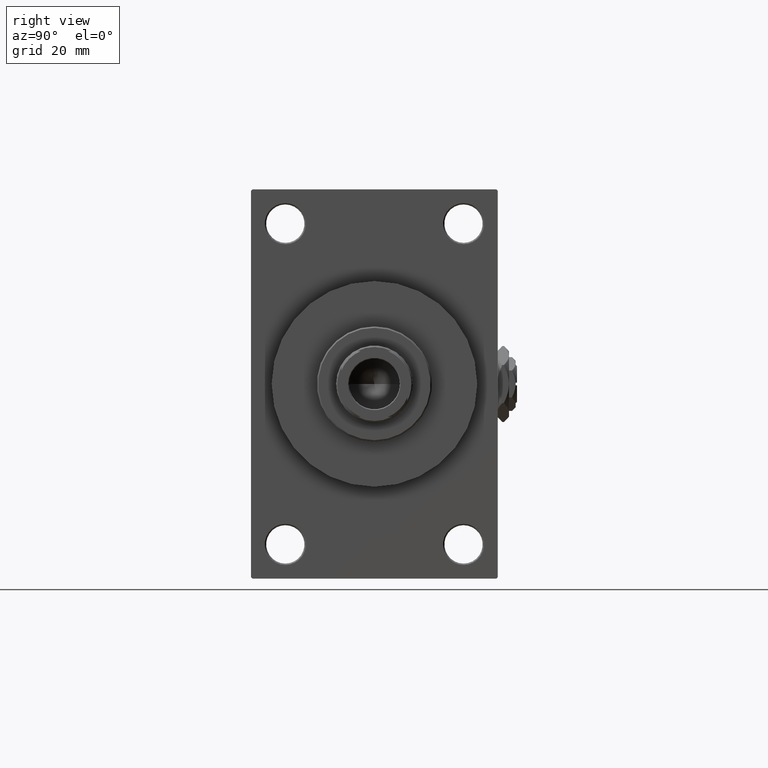
[diagram: clean part render]
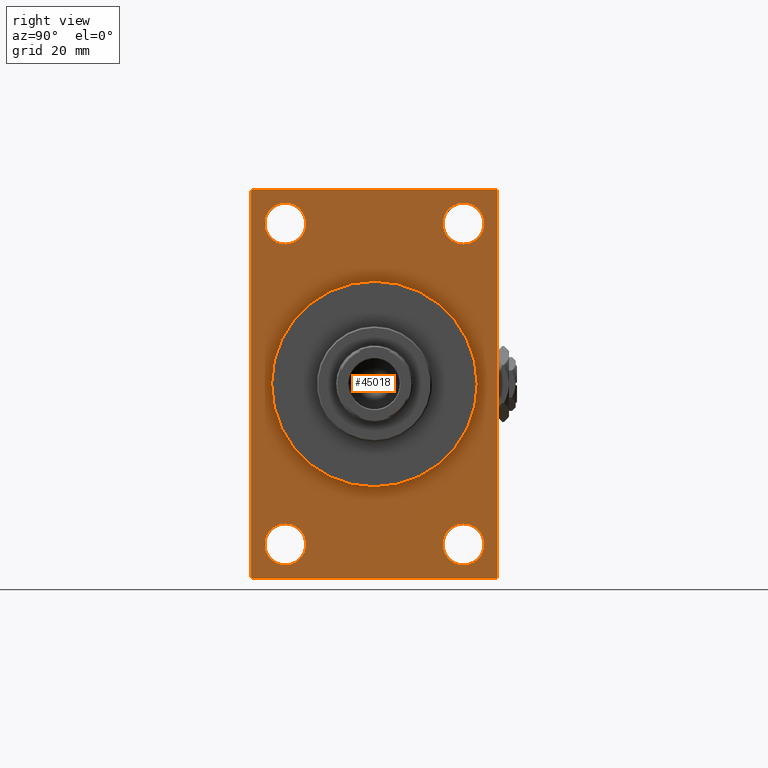
[diagram: same view with one face highlighted and labeled with its STEP entity id]
A machine part, right view. The second image highlights one B-rep face of the part: STEP entity #45018.
In plain terms, the highlighted planar face has unit normal (-1, 0, 0).
Its self-contained STEP definition (entity closure, byte-faithful):
#84 = CARTESIAN_POINT ( 'NONE',  ( 141.0000000000000000, 4.592425496802575156E-15, -37.50000000000000711 ) ) ;
#442 = EDGE_CURVE ( 'NONE', #764, #37250, #39195, .T. ) ;
#602 = FACE_BOUND ( 'NONE', #25463, .T. ) ;
#764 = VERTEX_POINT ( 'NONE', #36039 ) ;
#1236 = CARTESIAN_POINT ( 'NONE',  ( 141.0000000000000000, 32.50000000000000711, 58.50000000000000711 ) ) ;
#1278 = ORIENTED_EDGE ( 'NONE', *, *, #34218, .T. ) ;
#1463 = EDGE_CURVE ( 'NONE', #47131, #20885, #14547, .T. ) ;
#1757 = VERTEX_POINT ( 'NONE', #43391 ) ;
#2028 = AXIS2_PLACEMENT_3D ( 'NONE', #20705, #2499, #6235 ) ;
#2499 = DIRECTION ( 'NONE',  ( -1.000000000000000000, 0.000000000000000000, -0.000000000000000000 ) ) ;
#2732 = DIRECTION ( 'NONE',  ( 0.000000000000000000, 0.000000000000000000, -1.000000000000000000 ) ) ;
#2993 = EDGE_CURVE ( 'NONE', #4226, #46901, #17692, .T. ) ;
#3207 = LINE ( 'NONE', #48824, #19510 ) ;
#3281 = ORIENTED_EDGE ( 'NONE', *, *, #9224, .F. ) ;
#3437 = DIRECTION ( 'NONE',  ( 1.000000000000000000, 0.000000000000000000, 0.000000000000000000 ) ) ;
#3742 = CARTESIAN_POINT ( 'NONE',  ( 141.0000000000000000, -32.50000000000000000, -50.99999999999992895 ) ) ;
#4195 = ORIENTED_EDGE ( 'NONE', *, *, #34496, .T. ) ;
#4226 = VERTEX_POINT ( 'NONE', #24849 ) ;
#4471 = ORIENTED_EDGE ( 'NONE', *, *, #15772, .T. ) ;
#4823 = FACE_BOUND ( 'NONE', #18415, .T. ) ;
#5150 = VERTEX_POINT ( 'NONE', #47531 ) ;
#5185 = EDGE_CURVE ( 'NONE', #48714, #26913, #47777, .T. ) ;
#5545 = CARTESIAN_POINT ( 'NONE',  ( 141.0000000000000000, -32.50000000000000000, 66.00000000000005684 ) ) ;
#5768 = ORIENTED_EDGE ( 'NONE', *, *, #38411, .T. ) ;
#5961 = VERTEX_POINT ( 'NONE', #21042 ) ;
#6235 = DIRECTION ( 'NONE',  ( 0.000000000000000000, 0.000000000000000000, 1.000000000000000000 ) ) ;
#6850 = AXIS2_PLACEMENT_3D ( 'NONE', #17109, #13104, #35289 ) ;
#7301 = VERTEX_POINT ( 'NONE', #39703 ) ;
#7496 = VECTOR ( 'NONE', #37053, 1000.000000000000000 ) ;
#8232 = DIRECTION ( 'NONE',  ( -1.000000000000000000, 0.000000000000000000, -0.000000000000000000 ) ) ;
#8282 = CIRCLE ( 'NONE', #25799, 37.50000000000000711 ) ;
#8627 = CARTESIAN_POINT ( 'NONE',  ( 141.0000000000000000, -44.49999999999994316, -71.00000000000000000 ) ) ;
#8812 = FACE_OUTER_BOUND ( 'NONE', #46336, .T. ) ;
#8931 = VERTEX_POINT ( 'NONE', #13167 ) ;
#9224 = EDGE_CURVE ( 'NONE', #1757, #42358, #24367, .T. ) ;
#9914 = DIRECTION ( 'NONE',  ( -1.000000000000000000, 0.000000000000000000, -0.000000000000000000 ) ) ;
#10295 = DIRECTION ( 'NONE',  ( 0.000000000000000000, 0.000000000000000000, 1.000000000000000000 ) ) ;
#10988 = ORIENTED_EDGE ( 'NONE', *, *, #5185, .T. ) ;
#11755 = ORIENTED_EDGE ( 'NONE', *, *, #43326, .T. ) ;
#12084 = LINE ( 'NONE', #45735, #48348 ) ;
#12441 = CARTESIAN_POINT ( 'NONE',  ( 141.0000000000000000, 32.50000000000000711, -58.50000000000000000 ) ) ;
#12615 = LINE ( 'NONE', #8627, #44548 ) ;
#13050 = FACE_BOUND ( 'NONE', #48835, .T. ) ;
#13104 = DIRECTION ( 'NONE',  ( -1.000000000000000000, 0.000000000000000000, -0.000000000000000000 ) ) ;
#13167 = CARTESIAN_POINT ( 'NONE',  ( 141.0000000000000000, 44.50000000000001421, -70.99999999999998579 ) ) ;
#13468 = CARTESIAN_POINT ( 'NONE',  ( 141.0000000000000000, -44.99999999999997158, 70.99999999999998579 ) ) ;
#14222 = EDGE_CURVE ( 'NONE', #46901, #4226, #21995, .T. ) ;
#14547 = CIRCLE ( 'NONE', #42292, 7.500000000000055067 ) ;
#14685 = DIRECTION ( 'NONE',  ( -0.000000000000000000, 0.7071067811865376918, 0.7071067811865574537 ) ) ;
#15344 = CARTESIAN_POINT ( 'NONE',  ( 141.0000000000000000, -44.49999999999992184, 70.99999999999998579 ) ) ;
#15772 = EDGE_CURVE ( 'NONE', #45167, #7301, #12084, .T. ) ;
#16311 = FACE_BOUND ( 'NONE', #23986, .T. ) ;
#16583 = LINE ( 'NONE', #24292, #39566 ) ;
#16839 = DIRECTION ( 'NONE',  ( 0.000000000000000000, -4.886545002751570165E-17, -1.000000000000000000 ) ) ;
#17109 = CARTESIAN_POINT ( 'NONE',  ( 141.0000000000000000, 32.50000000000000711, -58.50000000000000000 ) ) ;
#17154 = DIRECTION ( 'NONE',  ( -1.000000000000000000, 0.000000000000000000, -0.000000000000000000 ) ) ;
#17220 = VERTEX_POINT ( 'NONE', #22649 ) ;
#17481 = ORIENTED_EDGE ( 'NONE', *, *, #442, .T. ) ;
#17516 = VERTEX_POINT ( 'NONE', #30063 ) ;
#17692 = CIRCLE ( 'NONE', #28006, 7.500000000000062172 ) ;
#17938 = CARTESIAN_POINT ( 'NONE',  ( 141.0000000000000000, 0.000000000000000000, 0.000000000000000000 ) ) ;
#18182 = DIRECTION ( 'NONE',  ( 0.000000000000000000, 0.000000000000000000, -1.000000000000000000 ) ) ;
#18415 = EDGE_LOOP ( 'NONE', ( #43085, #28948 ) ) ;
#19510 = VECTOR ( 'NONE', #14685, 999.9999999999998863 ) ;
#20100 = DIRECTION ( 'NONE',  ( 1.000000000000000000, 0.000000000000000000, 0.000000000000000000 ) ) ;
#20532 = FACE_BOUND ( 'NONE', #32436, .T. ) ;
#20601 = AXIS2_PLACEMENT_3D ( 'NONE', #46950, #34743, #35732 ) ;
#20705 = CARTESIAN_POINT ( 'NONE',  ( 141.0000000000000000, 32.50000000000000711, 58.50000000000000711 ) ) ;
#20885 = VERTEX_POINT ( 'NONE', #23088 ) ;
#20906 = DIRECTION ( 'NONE',  ( 0.000000000000000000, 0.000000000000000000, 1.000000000000000000 ) ) ;
#21028 = CARTESIAN_POINT ( 'NONE',  ( 141.0000000000000000, 45.00000000000002132, 71.00000000000000000 ) ) ;
#21042 = CARTESIAN_POINT ( 'NONE',  ( 141.0000000000000000, -44.49999999999991473, -71.00000000000000000 ) ) ;
#21115 = CARTESIAN_POINT ( 'NONE',  ( 141.0000000000000000, -44.99999999999997158, 70.49999999999998579 ) ) ;
#21147 = CIRCLE ( 'NONE', #2028, 7.500000000000047962 ) ;
#21156 = ORIENTED_EDGE ( 'NONE', *, *, #43760, .T. ) ;
#21162 = ORIENTED_EDGE ( 'NONE', *, *, #41153, .F. ) ;
#21221 = VECTOR ( 'NONE', #32736, 1000.000000000000000 ) ;
#21995 = CIRCLE ( 'NONE', #6850, 7.500000000000062172 ) ;
#22516 = ORIENTED_EDGE ( 'NONE', *, *, #33506, .F. ) ;
#22527 = VERTEX_POINT ( 'NONE', #27927 ) ;
#22649 = CARTESIAN_POINT ( 'NONE',  ( 141.0000000000000000, 32.50000000000000711, 66.00000000000005684 ) ) ;
#23088 = CARTESIAN_POINT ( 'NONE',  ( 141.0000000000000000, -32.50000000000000000, -66.00000000000004263 ) ) ;
#23423 = ORIENTED_EDGE ( 'NONE', *, *, #47504, .T. ) ;
#23986 = EDGE_LOOP ( 'NONE', ( #3281, #22516 ) ) ;
#24125 = DIRECTION ( 'NONE',  ( 0.000000000000000000, 0.000000000000000000, 1.000000000000000000 ) ) ;
#24292 = CARTESIAN_POINT ( 'NONE',  ( 141.0000000000000000, 45.00000000000002132, 71.00000000000000000 ) ) ;
#24367 = CIRCLE ( 'NONE', #29138, 37.50000000000000711 ) ;
#24849 = CARTESIAN_POINT ( 'NONE',  ( 141.0000000000000000, 32.50000000000000711, -50.99999999999993605 ) ) ;
#25463 = EDGE_LOOP ( 'NONE', ( #11755, #48867 ) ) ;
#25799 = AXIS2_PLACEMENT_3D ( 'NONE', #17938, #3437, #18182 ) ;
#26411 = LINE ( 'NONE', #45355, #44341 ) ;
#26552 = CARTESIAN_POINT ( 'NONE',  ( 141.0000000000000000, 32.50000000000000711, -66.00000000000005684 ) ) ;
#26913 = VERTEX_POINT ( 'NONE', #46947 ) ;
#26929 = DIRECTION ( 'NONE',  ( 0.000000000000000000, 0.000000000000000000, 1.000000000000000000 ) ) ;
#27283 = DIRECTION ( 'NONE',  ( 0.000000000000000000, -0.7071067811865474617, 0.7071067811865474617 ) ) ;
#27480 = DIRECTION ( 'NONE',  ( -1.000000000000000000, 0.000000000000000000, -0.000000000000000000 ) ) ;
#27637 = DIRECTION ( 'NONE',  ( -1.000000000000000000, 0.000000000000000000, -0.000000000000000000 ) ) ;
#27849 = CARTESIAN_POINT ( 'NONE',  ( 141.0000000000000000, -32.50000000000000000, 58.50000000000000711 ) ) ;
#27927 = CARTESIAN_POINT ( 'NONE',  ( 141.0000000000000000, -44.99999999999997158, -70.50000000000000000 ) ) ;
#28006 = AXIS2_PLACEMENT_3D ( 'NONE', #12441, #27637, #32373 ) ;
#28948 = ORIENTED_EDGE ( 'NONE', *, *, #2993, .T. ) ;
#29138 = AXIS2_PLACEMENT_3D ( 'NONE', #35541, #20100, #31803 ) ;
#30063 = CARTESIAN_POINT ( 'NONE',  ( 141.0000000000000000, 45.00000000000001421, -70.49999999999997158 ) ) ;
#31803 = DIRECTION ( 'NONE',  ( 0.000000000000000000, 0.000000000000000000, -1.000000000000000000 ) ) ;
#32057 = DIRECTION ( 'NONE',  ( 0.000000000000000000, 0.7071067811865771047, -0.7071067811865180408 ) ) ;
#32110 = CARTESIAN_POINT ( 'NONE',  ( 141.0000000000000000, -32.50000000000000000, 58.50000000000000711 ) ) ;
#32373 = DIRECTION ( 'NONE',  ( 0.000000000000000000, 0.000000000000000000, 1.000000000000000000 ) ) ;
#32436 = EDGE_LOOP ( 'NONE', ( #5768, #1278 ) ) ;
#32736 = DIRECTION ( 'NONE',  ( 0.000000000000000000, -1.000000000000000000, -1.541976423090495387E-16 ) ) ;
#33446 = DIRECTION ( 'NONE',  ( 0.000000000000000000, -1.000000000000000000, -1.541976423090495633E-16 ) ) ;
#33506 = EDGE_CURVE ( 'NONE', #42358, #1757, #8282, .T. ) ;
#33837 = CIRCLE ( 'NONE', #40225, 7.500000000000047962 ) ;
#34218 = EDGE_CURVE ( 'NONE', #17220, #5150, #33837, .T. ) ;
#34442 = CARTESIAN_POINT ( 'NONE',  ( 141.0000000000000000, 45.00000000000002132, 70.50000000000000000 ) ) ;
#34496 = EDGE_CURVE ( 'NONE', #8931, #17516, #3207, .T. ) ;
#34743 = DIRECTION ( 'NONE',  ( -1.000000000000000000, 0.000000000000000000, -0.000000000000000000 ) ) ;
#35215 = DIRECTION ( 'NONE',  ( 0.000000000000000000, 0.000000000000000000, 1.000000000000000000 ) ) ;
#35289 = DIRECTION ( 'NONE',  ( 0.000000000000000000, 0.000000000000000000, 1.000000000000000000 ) ) ;
#35541 = CARTESIAN_POINT ( 'NONE',  ( 141.0000000000000000, 0.000000000000000000, 0.000000000000000000 ) ) ;
#35732 = DIRECTION ( 'NONE',  ( -0.000000000000000000, 0.000000000000000000, 1.000000000000000000 ) ) ;
#36039 = CARTESIAN_POINT ( 'NONE',  ( 141.0000000000000000, -32.50000000000000000, 50.99999999999996447 ) ) ;
#36226 = AXIS2_PLACEMENT_3D ( 'NONE', #27849, #17154, #24125 ) ;
#36445 = AXIS2_PLACEMENT_3D ( 'NONE', #43431, #27480, #35215 ) ;
#36729 = CARTESIAN_POINT ( 'NONE',  ( 141.0000000000000000, -32.50000000000000000, -58.49999999999999289 ) ) ;
#37053 = DIRECTION ( 'NONE',  ( -0.000000000000000000, -0.7071067811865622277, -0.7071067811865328068 ) ) ;
#37215 = DIRECTION ( 'NONE',  ( -1.000000000000000000, 0.000000000000000000, -0.000000000000000000 ) ) ;
#37250 = VERTEX_POINT ( 'NONE', #5545 ) ;
#37498 = EDGE_CURVE ( 'NONE', #37250, #764, #43366, .T. ) ;
#38411 = EDGE_CURVE ( 'NONE', #5150, #17220, #21147, .T. ) ;
#38697 = ORIENTED_EDGE ( 'NONE', *, *, #42113, .F. ) ;
#38736 = PLANE ( 'NONE',  #20601 ) ;
#39195 = CIRCLE ( 'NONE', #44752, 7.500000000000047962 ) ;
#39566 = VECTOR ( 'NONE', #16839, 1000.000000000000000 ) ;
#39703 = CARTESIAN_POINT ( 'NONE',  ( 141.0000000000000000, 44.50000000000002132, 71.00000000000000000 ) ) ;
#40225 = AXIS2_PLACEMENT_3D ( 'NONE', #1236, #8232, #26929 ) ;
#40818 = EDGE_CURVE ( 'NONE', #7301, #48714, #47442, .T. ) ;
#41119 = ORIENTED_EDGE ( 'NONE', *, *, #37498, .T. ) ;
#41153 = EDGE_CURVE ( 'NONE', #8931, #5961, #26411, .T. ) ;
#42113 = EDGE_CURVE ( 'NONE', #45167, #17516, #16583, .T. ) ;
#42292 = AXIS2_PLACEMENT_3D ( 'NONE', #36729, #37215, #10295 ) ;
#42358 = VERTEX_POINT ( 'NONE', #84 ) ;
#42804 = VECTOR ( 'NONE', #2732, 1000.000000000000000 ) ;
#43085 = ORIENTED_EDGE ( 'NONE', *, *, #14222, .T. ) ;
#43326 = EDGE_CURVE ( 'NONE', #20885, #47131, #49166, .T. ) ;
#43366 = CIRCLE ( 'NONE', #36226, 7.500000000000047962 ) ;
#43391 = CARTESIAN_POINT ( 'NONE',  ( 141.0000000000000000, 0.000000000000000000, 37.50000000000000711 ) ) ;
#43431 = CARTESIAN_POINT ( 'NONE',  ( 141.0000000000000000, -32.50000000000000000, -58.49999999999999289 ) ) ;
#43760 = EDGE_CURVE ( 'NONE', #26913, #22527, #44365, .T. ) ;
#44341 = VECTOR ( 'NONE', #33446, 1000.000000000000000 ) ;
#44365 = LINE ( 'NONE', #13468, #42804 ) ;
#44548 = VECTOR ( 'NONE', #32057, 999.9999999999998863 ) ;
#44752 = AXIS2_PLACEMENT_3D ( 'NONE', #32110, #9914, #20906 ) ;
#45018 = ADVANCED_FACE ( 'NONE', ( #13050, #602, #4823, #20532, #16311, #8812 ), #38736, .F. ) ;
#45167 = VERTEX_POINT ( 'NONE', #34442 ) ;
#45218 = ORIENTED_EDGE ( 'NONE', *, *, #40818, .T. ) ;
#45355 = CARTESIAN_POINT ( 'NONE',  ( 141.0000000000000000, 45.00000000000001421, -70.99999999999998579 ) ) ;
#45735 = CARTESIAN_POINT ( 'NONE',  ( 141.0000000000000000, 44.50000000000002132, 71.00000000000000000 ) ) ;
#46336 = EDGE_LOOP ( 'NONE', ( #21156, #23423, #21162, #4195, #38697, #4471, #45218, #10988 ) ) ;
#46901 = VERTEX_POINT ( 'NONE', #26552 ) ;
#46947 = CARTESIAN_POINT ( 'NONE',  ( 141.0000000000000000, -44.99999999999997158, 70.49999999999998579 ) ) ;
#46950 = CARTESIAN_POINT ( 'NONE',  ( 141.0000000000000000, 0.000000000000000000, 0.000000000000000000 ) ) ;
#47131 = VERTEX_POINT ( 'NONE', #3742 ) ;
#47442 = LINE ( 'NONE', #21028, #21221 ) ;
#47504 = EDGE_CURVE ( 'NONE', #22527, #5961, #12615, .T. ) ;
#47531 = CARTESIAN_POINT ( 'NONE',  ( 141.0000000000000000, 32.50000000000000711, 50.99999999999996447 ) ) ;
#47777 = LINE ( 'NONE', #21115, #7496 ) ;
#48348 = VECTOR ( 'NONE', #27283, 1000.000000000000114 ) ;
#48714 = VERTEX_POINT ( 'NONE', #15344 ) ;
#48824 = CARTESIAN_POINT ( 'NONE',  ( 141.0000000000000000, 45.00000000000001421, -70.49999999999997158 ) ) ;
#48835 = EDGE_LOOP ( 'NONE', ( #17481, #41119 ) ) ;
#48867 = ORIENTED_EDGE ( 'NONE', *, *, #1463, .T. ) ;
#49166 = CIRCLE ( 'NONE', #36445, 7.500000000000055067 ) ;